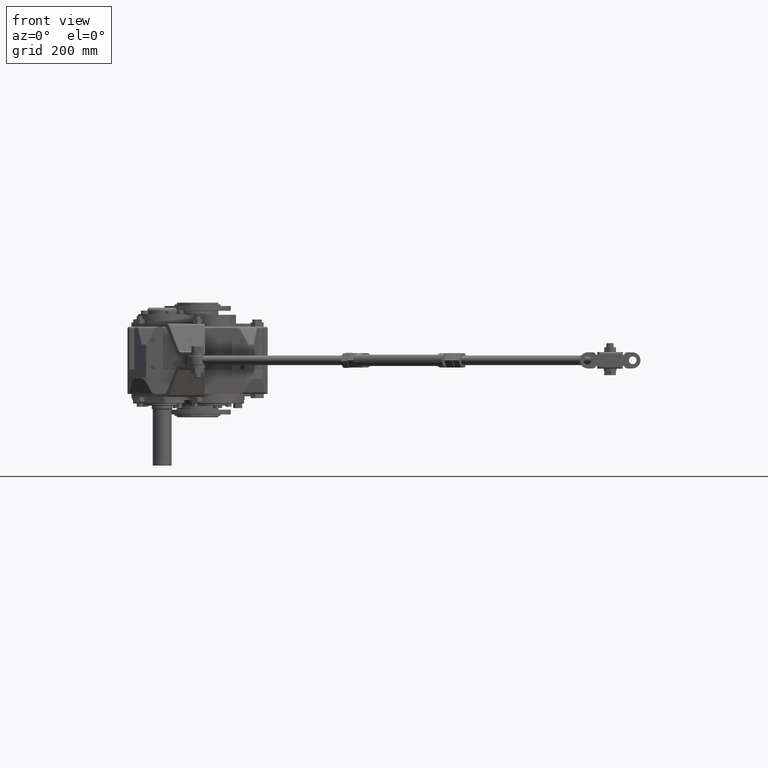
[diagram: clean part render]
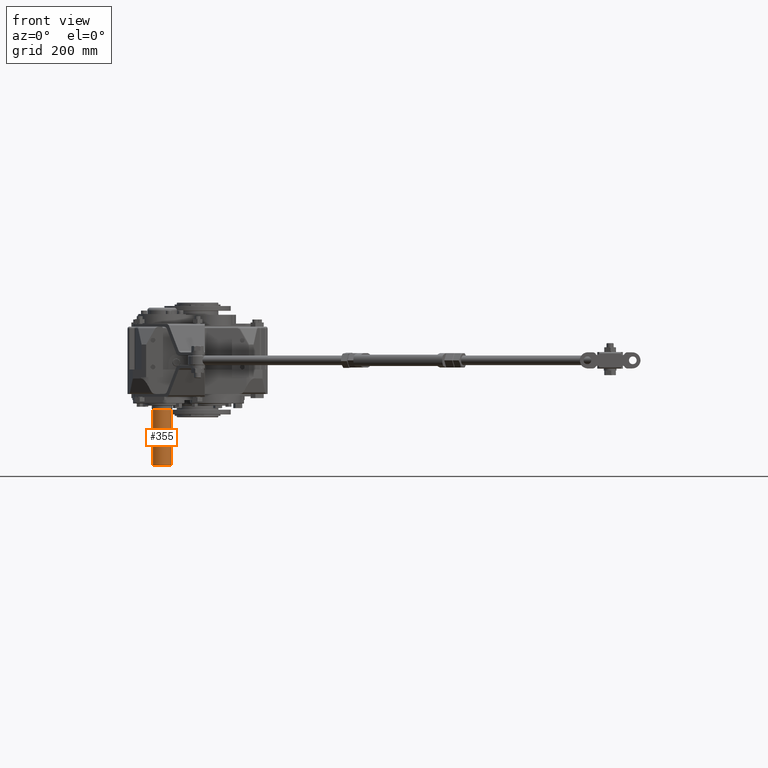
[diagram: same view with one face highlighted and labeled with its STEP entity id]
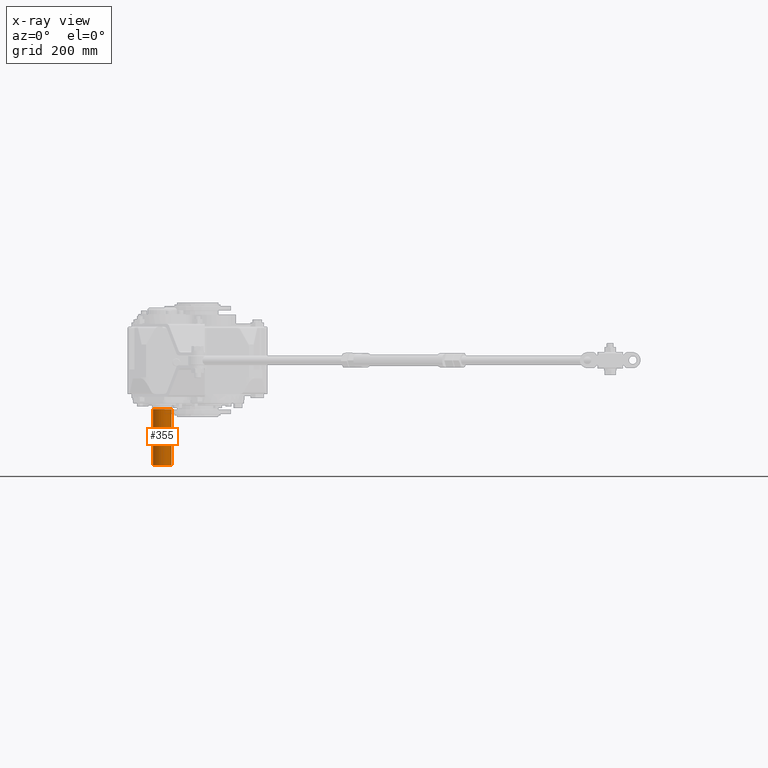
[diagram: x-ray of the same camera — body ghosted, the highlighted face saturated]
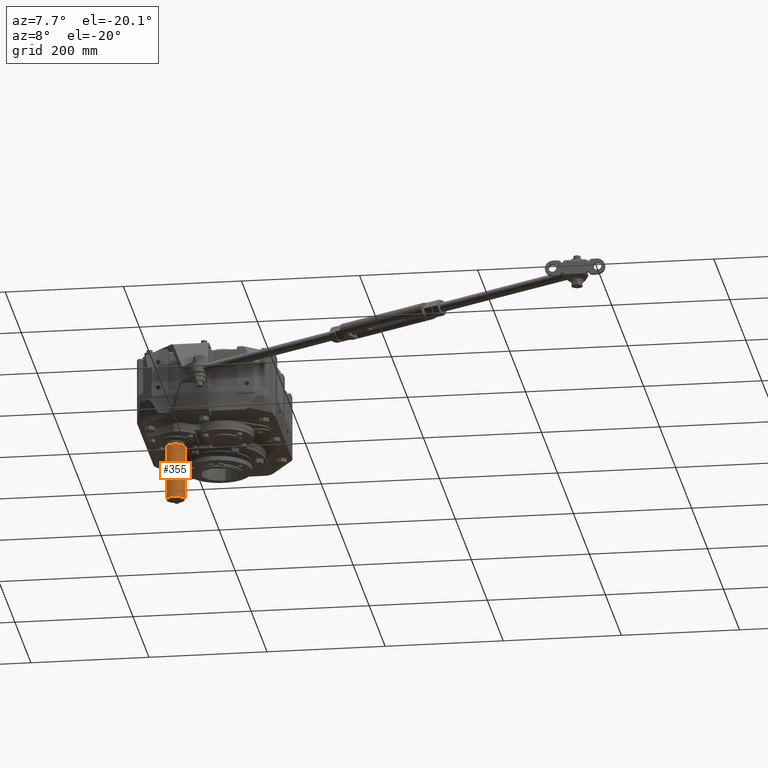
[diagram: same view with one face highlighted and labeled with its STEP entity id]
A machine part, front view. The second image highlights one B-rep face of the part: STEP entity #355.
The next image is the same camera in x-ray: the body ghosted, the highlighted face saturated — about 0% of this face is hidden behind the body in this view.
A second angle (auxiliary view) of the same face is appended — the face is thin or edge-on in the first view.
In plain terms, the highlighted cylindrical surface (edge-blend (fillet) strip) has radius 15.875 mm, axis along (-0, -0, -1).
Its self-contained STEP definition (entity closure, byte-faithful):
#355 = ADVANCED_FACE ( 'NONE', ( #15040 ), #36948, .T. ) ;
#1150 = CIRCLE ( 'NONE', #55522, 0.6250000000000000000 ) ;
#1405 = CARTESIAN_POINT ( 'NONE',  ( -1.712874015748032200, -4.173228346456692600, -5.807086614173229600 ) ) ;
#1552 = VERTEX_POINT ( 'NONE', #2021 ) ;
#2021 = CARTESIAN_POINT ( 'NONE',  ( -2.962874015748032400, -4.173228346456692600, -2.125984251968504600 ) ) ;
#9684 = CARTESIAN_POINT ( 'NONE',  ( -2.962874015748032400, -4.173228346456692600, -2.125984251968504600 ) ) ;
#12604 = DIRECTION ( 'NONE',  ( -1.000000000000000000, 0.0000000000000000000, 0.0000000000000000000 ) ) ;
#15040 = FACE_OUTER_BOUND ( 'NONE', #16343, .T. ) ;
#16343 = EDGE_LOOP ( 'NONE', ( #34028, #30488, #41141, #20298 ) ) ;
#17242 = EDGE_CURVE ( 'NONE', #23460, #49579, #1150, .T. ) ;
#18323 = EDGE_CURVE ( 'NONE', #1552, #23460, #31105, .T. ) ;
#19155 = LINE ( 'NONE', #37459, #39770 ) ;
#20298 = ORIENTED_EDGE ( 'NONE', *, *, #17242, .T. ) ;
#21421 = DIRECTION ( 'NONE',  ( 0.0000000000000000000, 0.0000000000000000000, 1.000000000000000000 ) ) ;
#22083 = CARTESIAN_POINT ( 'NONE',  ( -1.712874015748032200, -4.173228346456692600, -2.125984251968504600 ) ) ;
#22754 = CARTESIAN_POINT ( 'NONE',  ( -2.962874015748032400, -4.173228346456692600, -5.807086614173229600 ) ) ;
#23460 = VERTEX_POINT ( 'NONE', #22754 ) ;
#25338 = DIRECTION ( 'NONE',  ( 0.0000000000000000000, 0.0000000000000000000, -1.000000000000000000 ) ) ;
#27157 = DIRECTION ( 'NONE',  ( -0.0000000000000000000, -0.0000000000000000000, -1.000000000000000000 ) ) ;
#30488 = ORIENTED_EDGE ( 'NONE', *, *, #43391, .T. ) ;
#31105 = LINE ( 'NONE', #9684, #41432 ) ;
#33061 = EDGE_CURVE ( 'NONE', #34861, #49579, #19155, .T. ) ;
#34028 = ORIENTED_EDGE ( 'NONE', *, *, #33061, .F. ) ;
#34861 = VERTEX_POINT ( 'NONE', #22083 ) ;
#36948 = CYLINDRICAL_SURFACE ( 'NONE', #41001, 0.6250000000000000000 ) ;
#37459 = CARTESIAN_POINT ( 'NONE',  ( -1.712874015748032200, -4.173228346456692600, -2.125984251968504600 ) ) ;
#38758 = CARTESIAN_POINT ( 'NONE',  ( -2.337874015748032400, -4.173228346456692600, -2.125984251968504600 ) ) ;
#39770 = VECTOR ( 'NONE', #41884, 39.37007874015748100 ) ;
#41001 = AXIS2_PLACEMENT_3D ( 'NONE', #38758, #51616, #12604 ) ;
#41141 = ORIENTED_EDGE ( 'NONE', *, *, #18323, .T. ) ;
#41432 = VECTOR ( 'NONE', #27157, 39.37007874015748100 ) ;
#41435 = AXIS2_PLACEMENT_3D ( 'NONE', #51651, #25338, #56038 ) ;
#41884 = DIRECTION ( 'NONE',  ( -0.0000000000000000000, -0.0000000000000000000, -1.000000000000000000 ) ) ;
#43391 = EDGE_CURVE ( 'NONE', #34861, #1552, #50413, .T. ) ;
#47659 = CARTESIAN_POINT ( 'NONE',  ( -2.337874015748032400, -4.173228346456692600, -5.807086614173229600 ) ) ;
#49579 = VERTEX_POINT ( 'NONE', #1405 ) ;
#50413 = CIRCLE ( 'NONE', #41435, 0.6250000000000000000 ) ;
#51616 = DIRECTION ( 'NONE',  ( -0.0000000000000000000, -0.0000000000000000000, -1.000000000000000000 ) ) ;
#51651 = CARTESIAN_POINT ( 'NONE',  ( -2.337874015748032400, -4.173228346456692600, -2.125984251968504600 ) ) ;
#52082 = DIRECTION ( 'NONE',  ( -1.000000000000000000, 0.0000000000000000000, 0.0000000000000000000 ) ) ;
#55522 = AXIS2_PLACEMENT_3D ( 'NONE', #47659, #21421, #52082 ) ;
#56038 = DIRECTION ( 'NONE',  ( -1.000000000000000000, 0.0000000000000000000, 0.0000000000000000000 ) ) ;